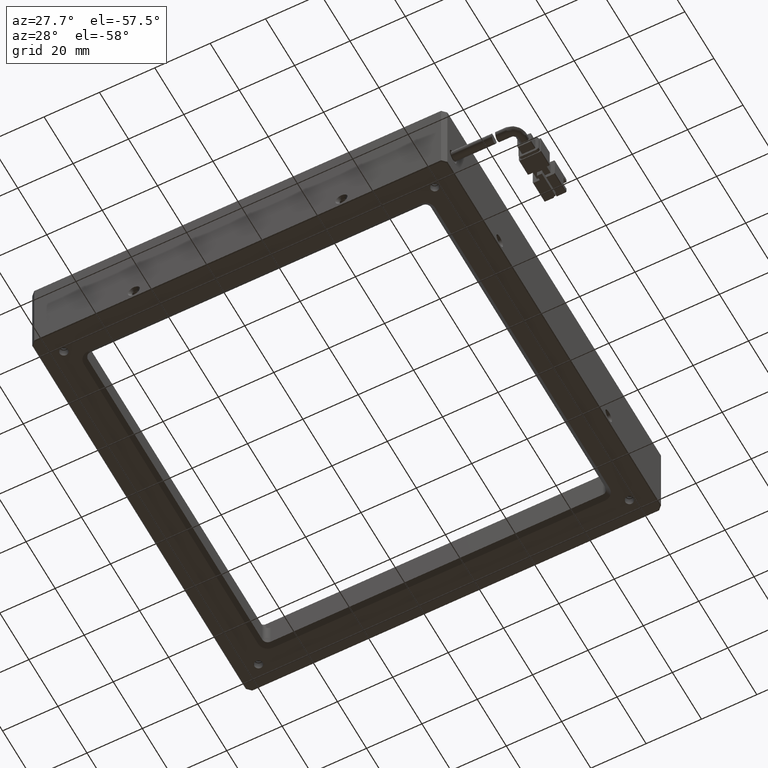
[diagram: clean part render]
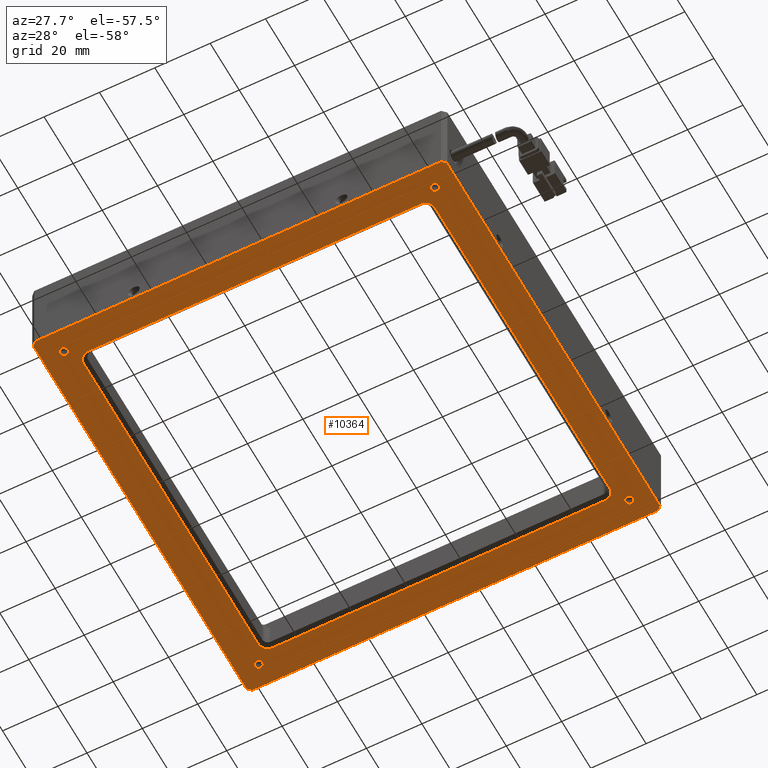
[diagram: same view with one face highlighted and labeled with its STEP entity id]
A machine part, auxiliary view. The second image highlights one B-rep face of the part: STEP entity #10364.
In plain terms, the highlighted planar face has unit normal (0, 0, -1).
Its self-contained STEP definition (entity closure, byte-faithful):
#142 = EDGE_CURVE ( 'NONE', #13087, #17821, #7306, .T. ) ;
#203 = EDGE_CURVE ( 'NONE', #14423, #15794, #17389, .T. ) ;
#237 = ORIENTED_EDGE ( 'NONE', *, *, #3509, .T. ) ;
#513 = VERTEX_POINT ( 'NONE', #6028 ) ;
#577 = EDGE_CURVE ( 'NONE', #14355, #8674, #802, .T. ) ;
#605 = CARTESIAN_POINT ( 'NONE',  ( -73.33175061932055900, 70.74938067712632500, -4.999999999997664100 ) ) ;
#626 = EDGE_CURVE ( 'NONE', #12699, #14926, #4101, .T. ) ;
#802 = LINE ( 'NONE', #17680, #8710 ) ;
#1093 = ORIENTED_EDGE ( 'NONE', *, *, #11539, .T. ) ;
#1398 = FACE_BOUND ( 'NONE', #18539, .T. ) ;
#1458 = ORIENTED_EDGE ( 'NONE', *, *, #9042, .T. ) ;
#1820 = VERTEX_POINT ( 'NONE', #10926 ) ;
#1839 = CARTESIAN_POINT ( 'NONE',  ( 64.86824938067711300, -62.62635525416173000, -4.999999999999938700 ) ) ;
#1965 = CARTESIAN_POINT ( 'NONE',  ( -78.33175061932286100, 77.74938067712635400, -5.000000000000061300 ) ) ;
#2114 = ORIENTED_EDGE ( 'NONE', *, *, #203, .T. ) ;
#2296 = DIRECTION ( 'NONE',  ( 0.0000000000000000000, 0.0000000000000000000, 1.000000000000000000 ) ) ;
#2343 = CARTESIAN_POINT ( 'NONE',  ( -76.83175061932284700, -56.25061932287367500, -5.000000000000061300 ) ) ;
#2500 = CARTESIAN_POINT ( 'NONE',  ( -69.83175061932284700, 70.74938067712632500, -4.999999999995392100 ) ) ;
#2591 = EDGE_LOOP ( 'NONE', ( #12286, #6077 ) ) ;
#2644 = VECTOR ( 'NONE', #17053, 1000.000000000000000 ) ;
#2956 = CARTESIAN_POINT ( 'NONE',  ( 65.16824938067712500, -64.25061932287364600, -4.999999999999938700 ) ) ;
#3192 = AXIS2_PLACEMENT_3D ( 'NONE', #11694, #2296, #13240 ) ;
#3289 = AXIS2_PLACEMENT_3D ( 'NONE', #4587, #4517, #4454 ) ;
#3319 = VECTOR ( 'NONE', #10361, 1000.000000000000000 ) ;
#3348 = DIRECTION ( 'NONE',  ( -1.000000000000000000, 0.0000000000000000000, 0.0000000000000000000 ) ) ;
#3368 = DIRECTION ( 'NONE',  ( -0.0000000000000000000, -0.0000000000000000000, 1.000000000000000000 ) ) ;
#3400 = CARTESIAN_POINT ( 'NONE',  ( 50.16824938067718200, 70.74938067712632500, -4.999999999995392100 ) ) ;
#3415 = EDGE_CURVE ( 'NONE', #17491, #15681, #9848, .T. ) ;
#3474 = CIRCLE ( 'NONE', #5536, 1.500000000000029100 ) ;
#3509 = EDGE_CURVE ( 'NONE', #14926, #3897, #5894, .T. ) ;
#3514 = ORIENTED_EDGE ( 'NONE', *, *, #6368, .T. ) ;
#3563 = DIRECTION ( 'NONE',  ( 1.000000000000000000, -0.0000000000000000000, 0.0000000000000000000 ) ) ;
#3832 = LINE ( 'NONE', #18486, #19573 ) ;
#3897 = VERTEX_POINT ( 'NONE', #18376 ) ;
#3974 = DIRECTION ( 'NONE',  ( -1.000000000000000000, 0.0000000000000000000, 0.0000000000000000000 ) ) ;
#3977 = CARTESIAN_POINT ( 'NONE',  ( 63.54398531196513000, 85.44938067712635600, -4.999999999999940500 ) ) ;
#4101 = LINE ( 'NONE', #18767, #8263 ) ;
#4131 = DIRECTION ( 'NONE',  ( -1.000000000000000000, 0.0000000000000000000, 0.0000000000000000000 ) ) ;
#4256 = EDGE_CURVE ( 'NONE', #17821, #13087, #7078, .T. ) ;
#4369 = ORIENTED_EDGE ( 'NONE', *, *, #4256, .T. ) ;
#4434 = AXIS2_PLACEMENT_3D ( 'NONE', #9754, #19000, #5198 ) ;
#4454 = DIRECTION ( 'NONE',  ( -1.000000000000000000, 0.0000000000000000000, 0.0000000000000000000 ) ) ;
#4517 = DIRECTION ( 'NONE',  ( 0.0000000000000000000, 0.0000000000000000000, 1.000000000000000000 ) ) ;
#4548 = DIRECTION ( 'NONE',  ( -1.000000000000000000, 0.0000000000000000000, -0.0000000000000000000 ) ) ;
#4555 = AXIS2_PLACEMENT_3D ( 'NONE', #2500, #13467, #4131 ) ;
#4587 = CARTESIAN_POINT ( 'NONE',  ( 57.16824938067717500, 77.74938067712635400, -5.000000000000061300 ) ) ;
#4956 = ORIENTED_EDGE ( 'NONE', *, *, #7184, .T. ) ;
#5006 = CARTESIAN_POINT ( 'NONE',  ( -75.33175061932281800, -56.25061932287367500, -5.000000000000061300 ) ) ;
#5155 = FACE_BOUND ( 'NONE', #7180, .T. ) ;
#5198 = DIRECTION ( 'NONE',  ( -1.000000000000000000, 0.0000000000000000000, 0.0000000000000000000 ) ) ;
#5348 = VECTOR ( 'NONE', #3563, 1000.000000000000000 ) ;
#5536 = AXIS2_PLACEMENT_3D ( 'NONE', #2343, #13296, #3974 ) ;
#5837 = EDGE_CURVE ( 'NONE', #17830, #513, #18927, .T. ) ;
#5868 = DIRECTION ( 'NONE',  ( -1.000000000000000000, 0.0000000000000000000, -0.0000000000000000000 ) ) ;
#5869 = CARTESIAN_POINT ( 'NONE',  ( 55.66824938067714600, 77.74938067712635400, -5.000000000000061300 ) ) ;
#5894 = CIRCLE ( 'NONE', #4434, 3.500000000003278300 ) ;
#6003 = CARTESIAN_POINT ( 'NONE',  ( -84.53175061932287800, -64.25061932287364600, -4.999999999999938700 ) ) ;
#6028 = CARTESIAN_POINT ( 'NONE',  ( 58.66824938067720300, 77.74938067712635400, -5.000000000000061300 ) ) ;
#6029 = CARTESIAN_POINT ( 'NONE',  ( 63.54398531196511600, 85.44938067712634200, -4.999999999999938700 ) ) ;
#6077 = ORIENTED_EDGE ( 'NONE', *, *, #20423, .T. ) ;
#6086 = CARTESIAN_POINT ( 'NONE',  ( 63.54398531196521600, -63.95061932287364200, -4.999999999999936900 ) ) ;
#6139 = CIRCLE ( 'NONE', #3192, 1.500000000000029100 ) ;
#6153 = ORIENTED_EDGE ( 'NONE', *, *, #577, .T. ) ;
#6224 = VECTOR ( 'NONE', #6662, 999.9999999999998900 ) ;
#6368 = EDGE_CURVE ( 'NONE', #513, #17830, #13278, .T. ) ;
#6375 = LINE ( 'NONE', #6003, #10049 ) ;
#6384 = CARTESIAN_POINT ( 'NONE',  ( 57.16824938067717500, -56.25061932287367500, -5.000000000000061300 ) ) ;
#6662 = DIRECTION ( 'NONE',  ( -0.7071067811865439100, -0.7071067811865512400, 0.0000000000000000000 ) ) ;
#6725 = DIRECTION ( 'NONE',  ( -1.000000000000000000, 0.0000000000000000000, 0.0000000000000000000 ) ) ;
#6749 = LINE ( 'NONE', #7723, #15063 ) ;
#6750 = DIRECTION ( 'NONE',  ( 0.0000000000000000000, 0.0000000000000000000, 1.000000000000000000 ) ) ;
#6785 = CARTESIAN_POINT ( 'NONE',  ( 57.16824938067717500, 77.74938067712635400, -5.000000000000061300 ) ) ;
#7009 = EDGE_CURVE ( 'NONE', #11274, #12699, #18247, .T. ) ;
#7031 = ORIENTED_EDGE ( 'NONE', *, *, #9760, .T. ) ;
#7078 = CIRCLE ( 'NONE', #8763, 1.500000000000029100 ) ;
#7100 = ORIENTED_EDGE ( 'NONE', *, *, #8448, .T. ) ;
#7180 = EDGE_LOOP ( 'NONE', ( #7100, #13551, #12587, #14278, #7190, #10512, #237, #4956 ) ) ;
#7184 = EDGE_CURVE ( 'NONE', #3897, #1820, #18731, .T. ) ;
#7190 = ORIENTED_EDGE ( 'NONE', *, *, #7009, .T. ) ;
#7306 = CIRCLE ( 'NONE', #11452, 1.500000000000029100 ) ;
#7511 = CARTESIAN_POINT ( 'NONE',  ( -84.53175061932289200, -62.62635525416173000, -4.999999999999950300 ) ) ;
#7646 = EDGE_CURVE ( 'NONE', #10029, #17676, #15330, .T. ) ;
#7723 = CARTESIAN_POINT ( 'NONE',  ( -84.53175061932287800, 84.12511660841440200, -4.999999999999938700 ) ) ;
#7737 = CIRCLE ( 'NONE', #18210, 1.500000000000029100 ) ;
#7811 = CARTESIAN_POINT ( 'NONE',  ( -76.83175061932283300, 77.74938067712635400, -5.000000000000061300 ) ) ;
#7894 = DIRECTION ( 'NONE',  ( -1.000000000000000000, 0.0000000000000000000, 0.0000000000000000000 ) ) ;
#7910 = DIRECTION ( 'NONE',  ( 0.0000000000000000000, 0.0000000000000000000, 1.000000000000000000 ) ) ;
#7917 = VECTOR ( 'NONE', #16950, 1000.000000000000000 ) ;
#8145 = AXIS2_PLACEMENT_3D ( 'NONE', #2956, #13942, #4548 ) ;
#8245 = VERTEX_POINT ( 'NONE', #9369 ) ;
#8263 = VECTOR ( 'NONE', #19012, 1000.000000000000000 ) ;
#8448 = EDGE_CURVE ( 'NONE', #1820, #17843, #17774, .T. ) ;
#8666 = DIRECTION ( 'NONE',  ( 0.0000000000000000000, 1.000000000000000000, 0.0000000000000000000 ) ) ;
#8674 = VERTEX_POINT ( 'NONE', #7511 ) ;
#8710 = VECTOR ( 'NONE', #16427, 1000.000000000000100 ) ;
#8763 = AXIS2_PLACEMENT_3D ( 'NONE', #16214, #15342, #7894 ) ;
#8765 = CARTESIAN_POINT ( 'NONE',  ( 53.66824938067718900, -64.25061932287364600, -4.999999999999938700 ) ) ;
#8913 = DIRECTION ( 'NONE',  ( 0.7071067811865474600, 0.7071067811865474600, 0.0000000000000000000 ) ) ;
#8915 = CARTESIAN_POINT ( 'NONE',  ( -69.83175061932284700, 74.24938067712405100, -4.999999999997665900 ) ) ;
#8958 = AXIS2_PLACEMENT_3D ( 'NONE', #3400, #3368, #3348 ) ;
#9042 = EDGE_CURVE ( 'NONE', #8245, #14423, #6749, .T. ) ;
#9279 = FACE_OUTER_BOUND ( 'NONE', #17061, .T. ) ;
#9363 = DIRECTION ( 'NONE',  ( -1.000000000000000000, 0.0000000000000000000, 0.0000000000000000000 ) ) ;
#9369 = CARTESIAN_POINT ( 'NONE',  ( -84.53175061932287800, 84.12511660841443000, -4.999999999999938700 ) ) ;
#9473 = AXIS2_PLACEMENT_3D ( 'NONE', #12114, #12096, #12073 ) ;
#9625 = ORIENTED_EDGE ( 'NONE', *, *, #3415, .T. ) ;
#9754 = CARTESIAN_POINT ( 'NONE',  ( 50.16824938067719600, -49.25061932287366800, -4.999999999995392100 ) ) ;
#9760 = EDGE_CURVE ( 'NONE', #15794, #10029, #19987, .T. ) ;
#9848 = CIRCLE ( 'NONE', #10097, 1.500000000000029100 ) ;
#9880 = DIRECTION ( 'NONE',  ( -1.000000000000000000, 0.0000000000000000000, 0.0000000000000000000 ) ) ;
#9941 = DIRECTION ( 'NONE',  ( 0.0000000000000000000, 0.0000000000000000000, 1.000000000000000000 ) ) ;
#10029 = VERTEX_POINT ( 'NONE', #19378 ) ;
#10049 = VECTOR ( 'NONE', #13936, 1000.000000000000000 ) ;
#10097 = AXIS2_PLACEMENT_3D ( 'NONE', #17244, #7910, #19098 ) ;
#10361 = DIRECTION ( 'NONE',  ( -0.0000000000000000000, -1.000000000000000000, -0.0000000000000000000 ) ) ;
#10364 = ADVANCED_FACE ( 'NONE', ( #14951, #13430, #13967, #1398, #9279, #5155 ), #13862, .T. ) ;
#10475 = CARTESIAN_POINT ( 'NONE',  ( 65.16824938067712500, 85.44938067712634200, -4.999999999999938700 ) ) ;
#10512 = ORIENTED_EDGE ( 'NONE', *, *, #626, .T. ) ;
#10538 = CARTESIAN_POINT ( 'NONE',  ( 65.16824938067712500, -63.95061932287364200, -4.999999999999938700 ) ) ;
#10874 = ORIENTED_EDGE ( 'NONE', *, *, #15345, .T. ) ;
#10926 = CARTESIAN_POINT ( 'NONE',  ( 53.66824938066465500, 70.74938067712632500, -4.999999999996528100 ) ) ;
#10963 = CARTESIAN_POINT ( 'NONE',  ( 64.86824938067711300, -64.25061932287364600, -4.999999999999938700 ) ) ;
#11274 = VERTEX_POINT ( 'NONE', #16218 ) ;
#11370 = EDGE_CURVE ( 'NONE', #17527, #15941, #6139, .T. ) ;
#11452 = AXIS2_PLACEMENT_3D ( 'NONE', #6384, #9941, #9880 ) ;
#11539 = EDGE_CURVE ( 'NONE', #13653, #14355, #18674, .T. ) ;
#11694 = CARTESIAN_POINT ( 'NONE',  ( -76.83175061932283300, 77.74938067712635400, -5.000000000000061300 ) ) ;
#12073 = DIRECTION ( 'NONE',  ( -1.000000000000000000, 0.0000000000000000000, 0.0000000000000000000 ) ) ;
#12096 = DIRECTION ( 'NONE',  ( -0.0000000000000000000, -0.0000000000000000000, 1.000000000000000000 ) ) ;
#12114 = CARTESIAN_POINT ( 'NONE',  ( -69.83175061932287500, -49.25061932287366800, -4.999999999995392100 ) ) ;
#12286 = ORIENTED_EDGE ( 'NONE', *, *, #11370, .T. ) ;
#12587 = ORIENTED_EDGE ( 'NONE', *, *, #17153, .T. ) ;
#12699 = VERTEX_POINT ( 'NONE', #14052 ) ;
#13081 = CARTESIAN_POINT ( 'NONE',  ( 50.16824938067719600, -52.75061932288912900, -4.999999999995392100 ) ) ;
#13087 = VERTEX_POINT ( 'NONE', #13837 ) ;
#13240 = DIRECTION ( 'NONE',  ( -1.000000000000000000, 0.0000000000000000000, 0.0000000000000000000 ) ) ;
#13278 = CIRCLE ( 'NONE', #3289, 1.500000000000029100 ) ;
#13296 = DIRECTION ( 'NONE',  ( 0.0000000000000000000, 0.0000000000000000000, 1.000000000000000000 ) ) ;
#13430 = FACE_BOUND ( 'NONE', #15352, .T. ) ;
#13467 = DIRECTION ( 'NONE',  ( -0.0000000000000000000, -0.0000000000000000000, 1.000000000000000000 ) ) ;
#13474 = VERTEX_POINT ( 'NONE', #605 ) ;
#13551 = ORIENTED_EDGE ( 'NONE', *, *, #20307, .T. ) ;
#13653 = VERTEX_POINT ( 'NONE', #6086 ) ;
#13723 = CARTESIAN_POINT ( 'NONE',  ( 58.66824938067720300, -56.25061932287367500, -5.000000000000061300 ) ) ;
#13741 = DIRECTION ( 'NONE',  ( -1.000000000000000000, 0.0000000000000000000, -0.0000000000000000000 ) ) ;
#13837 = CARTESIAN_POINT ( 'NONE',  ( 55.66824938067714600, -56.25061932287367500, -5.000000000000061300 ) ) ;
#13862 = PLANE ( 'NONE',  #8145 ) ;
#13936 = DIRECTION ( 'NONE',  ( 0.0000000000000000000, 1.000000000000000000, 0.0000000000000000000 ) ) ;
#13942 = DIRECTION ( 'NONE',  ( 0.0000000000000000000, 0.0000000000000000000, -1.000000000000000000 ) ) ;
#13967 = FACE_BOUND ( 'NONE', #2591, .T. ) ;
#14052 = CARTESIAN_POINT ( 'NONE',  ( -69.83175061932286100, -52.75061932287139400, -4.999999999997665900 ) ) ;
#14154 = CIRCLE ( 'NONE', #4555, 3.499999999950945000 ) ;
#14278 = ORIENTED_EDGE ( 'NONE', *, *, #16428, .T. ) ;
#14355 = VERTEX_POINT ( 'NONE', #14452 ) ;
#14423 = VERTEX_POINT ( 'NONE', #16272 ) ;
#14452 = CARTESIAN_POINT ( 'NONE',  ( -83.20748655061099400, -63.95061932287364200, -4.999999999999940500 ) ) ;
#14459 = VECTOR ( 'NONE', #5868, 1000.000000000000000 ) ;
#14499 = ORIENTED_EDGE ( 'NONE', *, *, #142, .T. ) ;
#14926 = VERTEX_POINT ( 'NONE', #13081 ) ;
#14951 = FACE_BOUND ( 'NONE', #17131, .T. ) ;
#15063 = VECTOR ( 'NONE', #8913, 1000.000000000000100 ) ;
#15330 = LINE ( 'NONE', #10963, #3319 ) ;
#15342 = DIRECTION ( 'NONE',  ( 0.0000000000000000000, 0.0000000000000000000, 1.000000000000000000 ) ) ;
#15345 = EDGE_CURVE ( 'NONE', #17676, #13653, #18774, .T. ) ;
#15352 = EDGE_LOOP ( 'NONE', ( #17419, #3514 ) ) ;
#15670 = ORIENTED_EDGE ( 'NONE', *, *, #7646, .T. ) ;
#15681 = VERTEX_POINT ( 'NONE', #17930 ) ;
#15794 = VERTEX_POINT ( 'NONE', #3977 ) ;
#15941 = VERTEX_POINT ( 'NONE', #16935 ) ;
#16214 = CARTESIAN_POINT ( 'NONE',  ( 57.16824938067717500, -56.25061932287367500, -5.000000000000061300 ) ) ;
#16218 = CARTESIAN_POINT ( 'NONE',  ( -73.33175061932604400, -49.25061932287366800, -5.000000000010739000 ) ) ;
#16272 = CARTESIAN_POINT ( 'NONE',  ( -83.20748655061093800, 85.44938067712634200, -4.999999999999938700 ) ) ;
#16427 = DIRECTION ( 'NONE',  ( -0.7071067811865401300, 0.7071067811865550100, 0.0000000000000000000 ) ) ;
#16428 = EDGE_CURVE ( 'NONE', #13474, #11274, #18946, .T. ) ;
#16442 = EDGE_CURVE ( 'NONE', #8674, #8245, #6375, .T. ) ;
#16865 = ORIENTED_EDGE ( 'NONE', *, *, #19025, .T. ) ;
#16935 = CARTESIAN_POINT ( 'NONE',  ( -75.33175061932280400, 77.74938067712635400, -5.000000000000061300 ) ) ;
#16950 = DIRECTION ( 'NONE',  ( 0.7071067811865549000, -0.7071067811865401300, 0.0000000000000000000 ) ) ;
#17053 = DIRECTION ( 'NONE',  ( -0.0000000000000000000, -1.000000000000000000, -0.0000000000000000000 ) ) ;
#17061 = EDGE_LOOP ( 'NONE', ( #15670, #10874, #1093, #6153, #20163, #1458, #2114, #7031 ) ) ;
#17131 = EDGE_LOOP ( 'NONE', ( #14499, #4369 ) ) ;
#17153 = EDGE_CURVE ( 'NONE', #19143, #13474, #14154, .T. ) ;
#17244 = CARTESIAN_POINT ( 'NONE',  ( -76.83175061932284700, -56.25061932287367500, -5.000000000000061300 ) ) ;
#17389 = LINE ( 'NONE', #10475, #5348 ) ;
#17419 = ORIENTED_EDGE ( 'NONE', *, *, #5837, .T. ) ;
#17491 = VERTEX_POINT ( 'NONE', #5006 ) ;
#17527 = VERTEX_POINT ( 'NONE', #1965 ) ;
#17676 = VERTEX_POINT ( 'NONE', #19660 ) ;
#17680 = CARTESIAN_POINT ( 'NONE',  ( -83.20748655061098000, -63.95061932287364200, -4.999999999999938700 ) ) ;
#17774 = CIRCLE ( 'NONE', #8958, 3.500000000003264500 ) ;
#17821 = VERTEX_POINT ( 'NONE', #13723 ) ;
#17830 = VERTEX_POINT ( 'NONE', #5869 ) ;
#17843 = VERTEX_POINT ( 'NONE', #20134 ) ;
#17930 = CARTESIAN_POINT ( 'NONE',  ( -78.33175061932287500, -56.25061932287367500, -5.000000000000061300 ) ) ;
#18210 = AXIS2_PLACEMENT_3D ( 'NONE', #7811, #18825, #9363 ) ;
#18230 = VECTOR ( 'NONE', #8666, 1000.000000000000000 ) ;
#18247 = CIRCLE ( 'NONE', #9473, 3.499999999950931300 ) ;
#18376 = CARTESIAN_POINT ( 'NONE',  ( 53.66824938067490800, -49.25061932287372500, -4.999999999997665900 ) ) ;
#18486 = CARTESIAN_POINT ( 'NONE',  ( 65.16824938067712500, 74.24938067712632500, -4.999999999999938700 ) ) ;
#18539 = EDGE_LOOP ( 'NONE', ( #16865, #9625 ) ) ;
#18674 = LINE ( 'NONE', #10538, #14459 ) ;
#18731 = LINE ( 'NONE', #8765, #18230 ) ;
#18767 = CARTESIAN_POINT ( 'NONE',  ( 65.16824938067712500, -52.75061932287366800, -4.999999999999938700 ) ) ;
#18774 = LINE ( 'NONE', #1839, #6224 ) ;
#18825 = DIRECTION ( 'NONE',  ( 0.0000000000000000000, 0.0000000000000000000, 1.000000000000000000 ) ) ;
#18927 = CIRCLE ( 'NONE', #19625, 1.500000000000029100 ) ;
#18946 = LINE ( 'NONE', #20111, #2644 ) ;
#19000 = DIRECTION ( 'NONE',  ( -0.0000000000000000000, -0.0000000000000000000, 1.000000000000000000 ) ) ;
#19012 = DIRECTION ( 'NONE',  ( 1.000000000000000000, -0.0000000000000000000, 0.0000000000000000000 ) ) ;
#19025 = EDGE_CURVE ( 'NONE', #15681, #17491, #3474, .T. ) ;
#19098 = DIRECTION ( 'NONE',  ( -1.000000000000000000, 0.0000000000000000000, 0.0000000000000000000 ) ) ;
#19143 = VERTEX_POINT ( 'NONE', #8915 ) ;
#19378 = CARTESIAN_POINT ( 'NONE',  ( 64.86824938067711300, 84.12511660841438800, -4.999999999999940500 ) ) ;
#19573 = VECTOR ( 'NONE', #13741, 1000.000000000000000 ) ;
#19625 = AXIS2_PLACEMENT_3D ( 'NONE', #6785, #6750, #6725 ) ;
#19660 = CARTESIAN_POINT ( 'NONE',  ( 64.86824938067711300, -62.62635525416173000, -4.999999999999938700 ) ) ;
#19987 = LINE ( 'NONE', #6029, #7917 ) ;
#20111 = CARTESIAN_POINT ( 'NONE',  ( -73.33175061932283300, -64.25061932287364600, -4.999999999999938700 ) ) ;
#20134 = CARTESIAN_POINT ( 'NONE',  ( 50.16824938067723800, 74.24938067712405100, -4.999999999997665900 ) ) ;
#20163 = ORIENTED_EDGE ( 'NONE', *, *, #16442, .T. ) ;
#20307 = EDGE_CURVE ( 'NONE', #17843, #19143, #3832, .T. ) ;
#20423 = EDGE_CURVE ( 'NONE', #15941, #17527, #7737, .T. ) ;